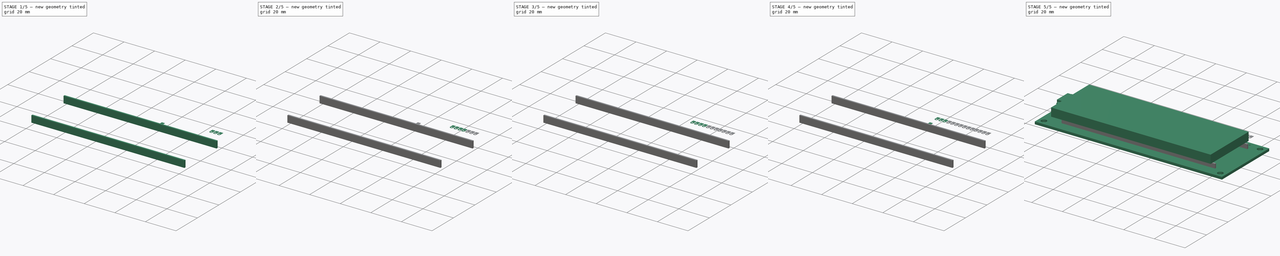
[diagram: build sequence overview — one tinted view per stage of 5, left to right]
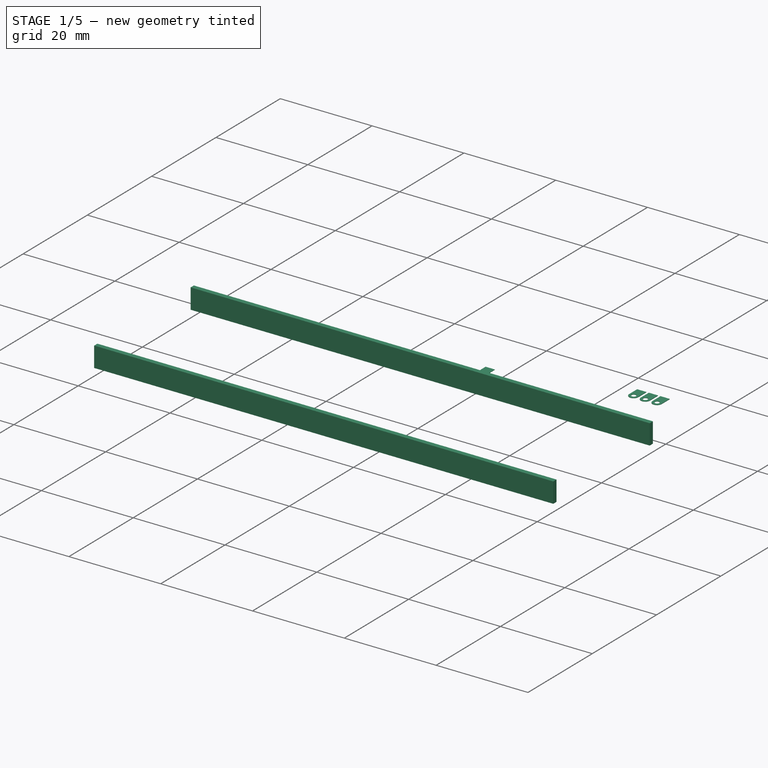
[diagram: stage 1 of 5 — iso view after this stage's code; geometry added in this stage tinted green]
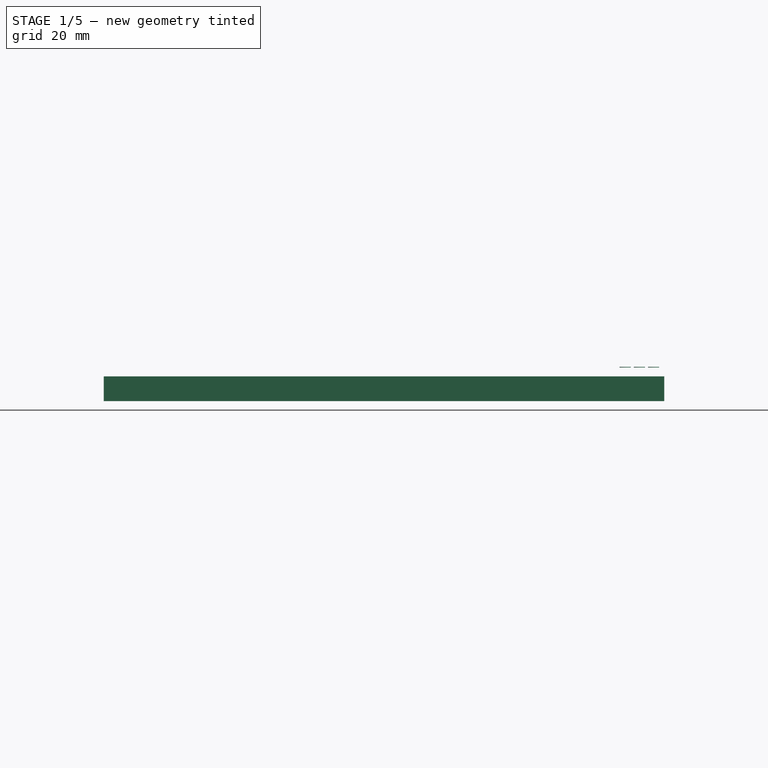
[diagram: stage 1 of 5 — front view after this stage's code; geometry added in this stage tinted green]
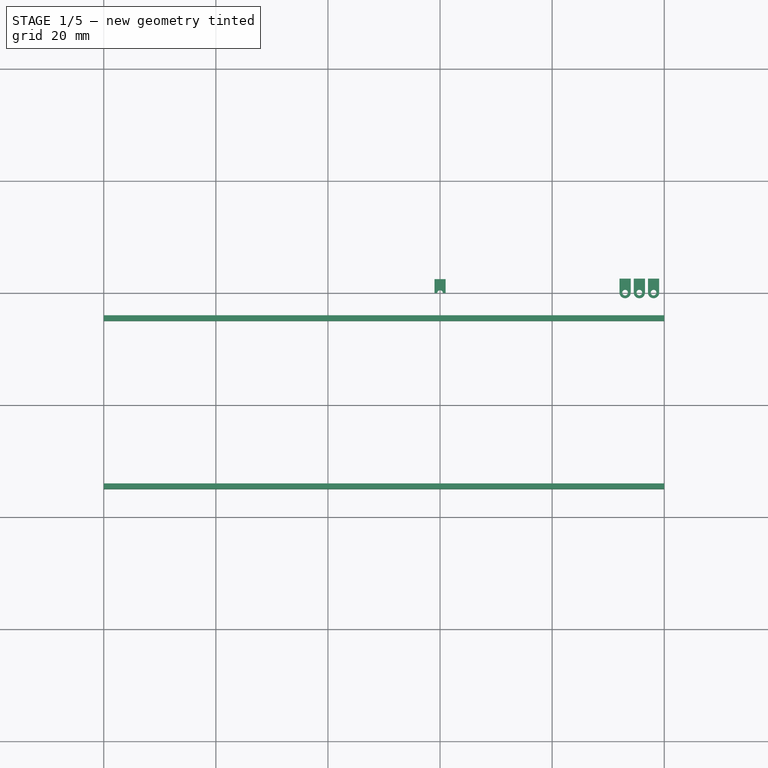
[diagram: stage 1 of 5 — top view after this stage's code; geometry added in this stage tinted green]
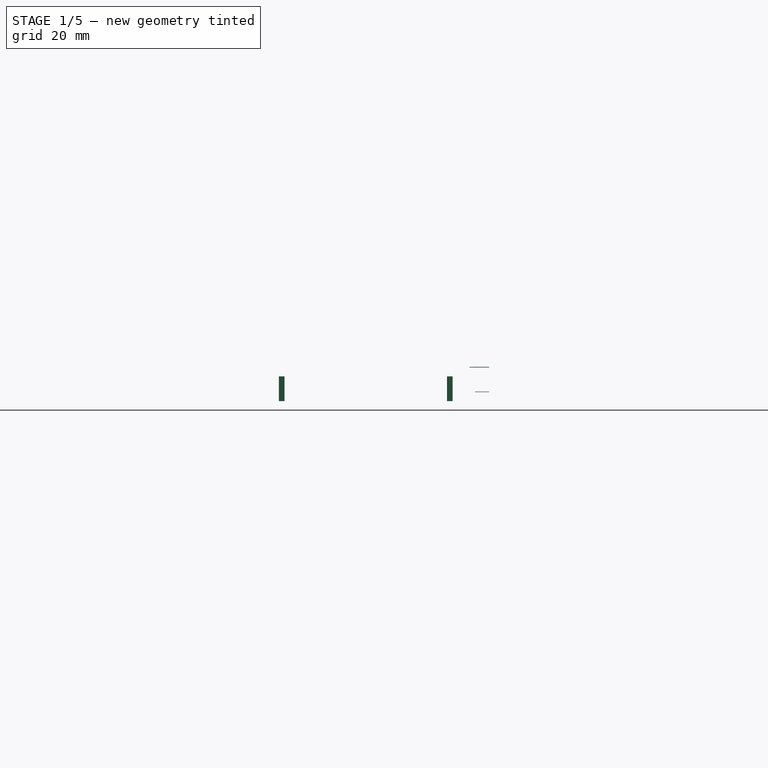
[diagram: stage 1 of 5 — right view after this stage's code; geometry added in this stage tinted green]
FCSTD DOCUMENT  (FreeCAD 0.17R11223 (Git))
Label: HY1602E_5
License: All rights reserved
LicenseURL: http://en.wikipedia.org/wiki/All_rights_reserved
objects: Part::Cylinder×48, Part::Cut×33, Part::Box×24, Part::MultiFuse×17, Part::Fillet×8, Sketcher::SketchObject×1, PartDesign::Pad×1, PartDesign::Body×1, App::DocumentObjectGroup×1
note: 134 computed .brp shape members not serialized (recipe doc carries the construction recipe); baked Part::Feature solids carry a one-line shape summary decoded from their .brp

FEATURE [Part::Cylinder] Cylinder038
  Angle = 360
  AttacherType = Attacher::AttachEngine3D
  Height = 0.1
  Placement = pos=(0,0,1.6) rot=(0,0,1;0rad)
  Radius = 0.5
FEATURE [Part::Box] Box019  label="Kub012"
  AttacherType = Attacher::AttachEngine3D
  Height = 0.1
  Length = 2
  Placement = pos=(-1,0,1.6) rot=(0,0,1;0rad)
  Width = 2.5
FEATURE [Part::Cut] Cut026
  Base = -> Box019
  Tool = -> Cylinder038
FEATURE [Part::Cylinder] Cylinder039
  Angle = 360
  AttacherType = Attacher::AttachEngine3D
  Height = 0.1
  Placement = pos=(0,0,1.6) rot=(0,0,1;0rad)
  Radius = 1
FEATURE [Part::Cylinder] Cylinder040
  Angle = 360
  AttacherType = Attacher::AttachEngine3D
  Height = 0.1
  Placement = pos=(0,0,1.6) rot=(0,0,1;0rad)
  Radius = 0.5
FEATURE [Part::Cut] Cut027
  Base = -> Cylinder039
  Tool = -> Cylinder040
FEATURE [Part::Cylinder] Cylinder041
  Angle = 360
  AttacherType = Attacher::AttachEngine3D
  Height = 0.1
  Placement = pos=(0,0,1.6) rot=(0,0,1;0rad)
  Radius = 0.5
FEATURE [Part::Box] Box020  label="Kub013"
  AttacherType = Attacher::AttachEngine3D
  Height = 0.1
  Length = 2
  Placement = pos=(-1,0,1.6) rot=(0,0,1;0rad)
  Width = 2.5
FEATURE [Part::Cut] Cut028
  Base = -> Box020
  Tool = -> Cylinder041
FEATURE [Part::MultiFuse] Fusion014  label="Pad 014"
  Placement = pos=(33.02,0,4.4) rot=(0,0,1;0rad)
  Shapes = -> [Cut027,Cut028]
FEATURE [Part::Cylinder] Cylinder042
  Angle = 360
  AttacherType = Attacher::AttachEngine3D
  Height = 0.1
  Placement = pos=(0,0,1.6) rot=(0,0,1;0rad)
  Radius = 1
FEATURE [Part::Cylinder] Cylinder043
  Angle = 360
  AttacherType = Attacher::AttachEngine3D
  Height = 0.1
  Placement = pos=(0,0,1.6) rot=(0,0,1;0rad)
  Radius = 0.5
FEATURE [Part::Cut] Cut029
  Base = -> Cylinder042
  Tool = -> Cylinder043
FEATURE [Part::Cylinder] Cylinder044
  Angle = 360
  AttacherType = Attacher::AttachEngine3D
  Height = 0.1
  Placement = pos=(0,0,1.6) rot=(0,0,1;0rad)
  Radius = 0.5
FEATURE [Part::Box] Box021  label="Kub014"
  AttacherType = Attacher::AttachEngine3D
  Height = 0.1
  Length = 2
  Placement = pos=(-1,0,1.6) rot=(0,0,1;0rad)
  Width = 2.5
FEATURE [Part::Cut] Cut030
  Base = -> Box021
  Tool = -> Cylinder044
FEATURE [Part::MultiFuse] Fusion015  label="Pad 015"
  Placement = pos=(35.56,0,4.4) rot=(0,0,1;0rad)
  Shapes = -> [Cut029,Cut030]
FEATURE [Part::Cylinder] Cylinder045
  Angle = 360
  AttacherType = Attacher::AttachEngine3D
  Height = 0.1
  Placement = pos=(0,0,1.6) rot=(0,0,1;0rad)
  Radius = 1
FEATURE [Part::Cylinder] Cylinder046
  Angle = 360
  AttacherType = Attacher::AttachEngine3D
  Height = 0.1
  Placement = pos=(0,0,1.6) rot=(0,0,1;0rad)
  Radius = 0.5
FEATURE [Part::Cut] Cut031
  Base = -> Cylinder045
  Tool = -> Cylinder046
FEATURE [Part::Cylinder] Cylinder047
  Angle = 360
  AttacherType = Attacher::AttachEngine3D
  Height = 0.1
  Placement = pos=(0,0,1.6) rot=(0,0,1;0rad)
  Radius = 0.5
FEATURE [Part::Box] Box022  label="Kub015"
  AttacherType = Attacher::AttachEngine3D
  Height = 0.1
  Length = 2
  Placement = pos=(-1,0,1.6) rot=(0,0,1;0rad)
  Width = 2.5
FEATURE [Part::Cut] Cut032
  Base = -> Box022
  Tool = -> Cylinder047
FEATURE [Part::MultiFuse] Fusion016  label="Pad 016"
  Placement = pos=(38.1,0,4.4) rot=(0,0,1;0rad)
  Shapes = -> [Cut031,Cut032]
FEATURE [App::DocumentObjectGroup] Grupp  label="Pads"
  Group = -> [Fusion001,Fusion002,Fusion003,Fusion004,Fusion005,Fusion006,Fusion007,Fusion008,Fusion009,Fusion010,Fusion011,Fusion012,Fusion013,Fusion014,Fusion015,Fusion016]
FEATURE [Part::Box] Box023  label="Glider 001"
  AttacherType = Attacher::AttachEngine3D
  Height = 4.4
  Length = 100
  Placement = pos=(-60,-5,0) rot=(0,0,1;0rad)
  Width = 1
FEATURE [Part::Box] Box024  label="Glider 002"
  AttacherType = Attacher::AttachEngine3D
  Height = 4.4
  Length = 100
  Placement = pos=(-60,-35,0) rot=(0,0,1;0rad)
  Width = 1
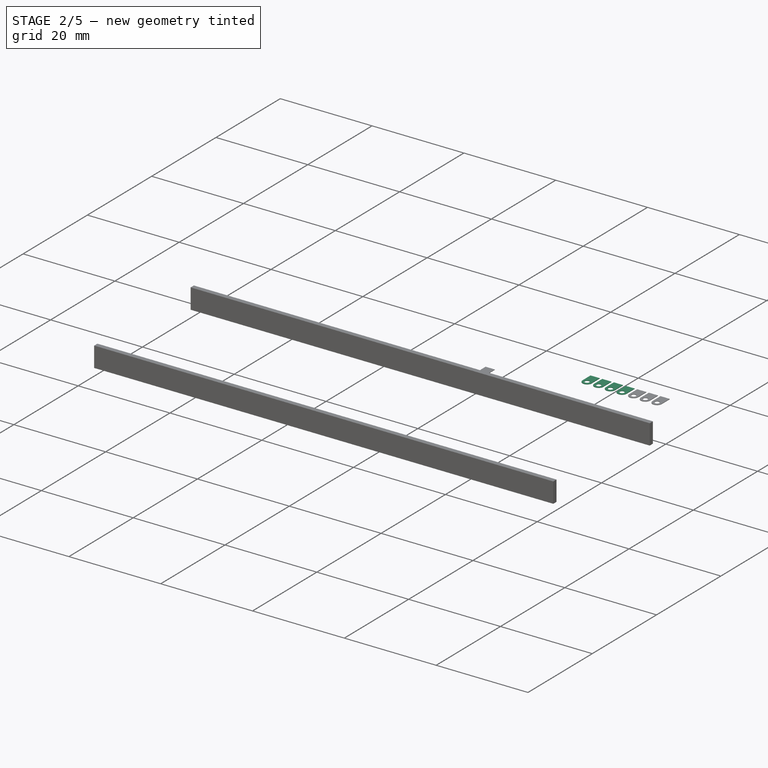
[diagram: stage 2 of 5 — iso view after this stage's code; geometry added in this stage tinted green]
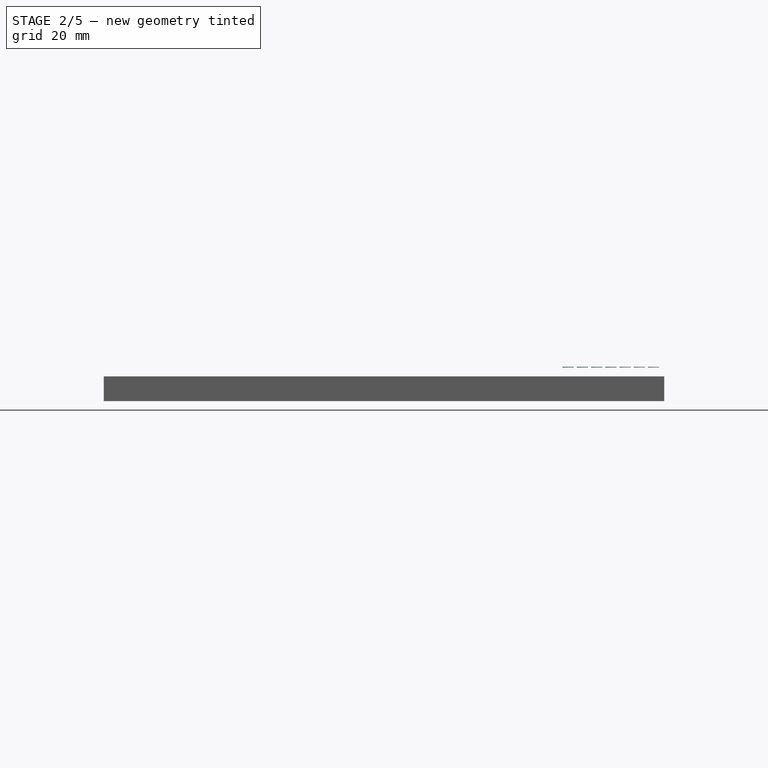
[diagram: stage 2 of 5 — front view after this stage's code; geometry added in this stage tinted green]
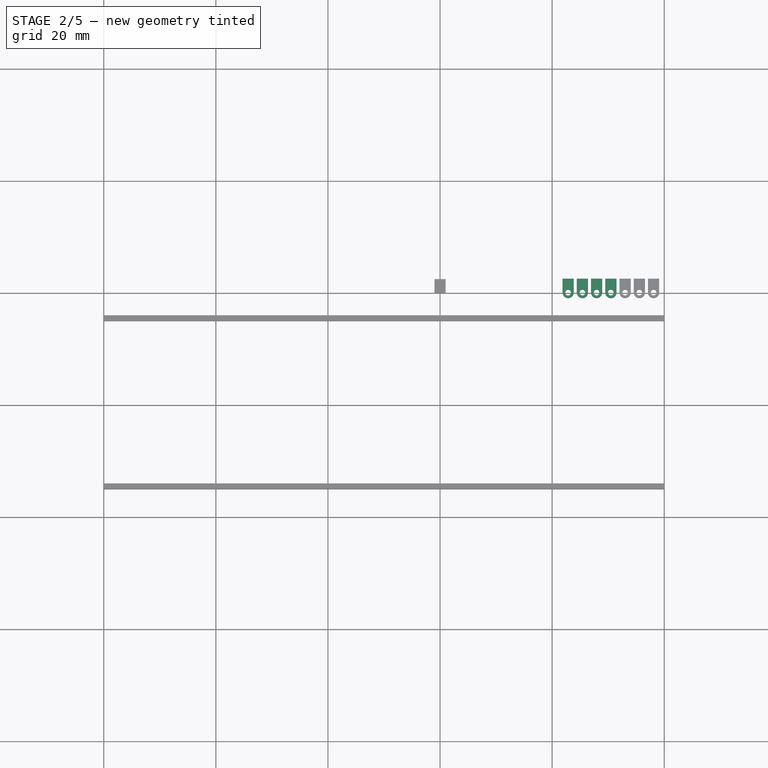
[diagram: stage 2 of 5 — top view after this stage's code; geometry added in this stage tinted green]
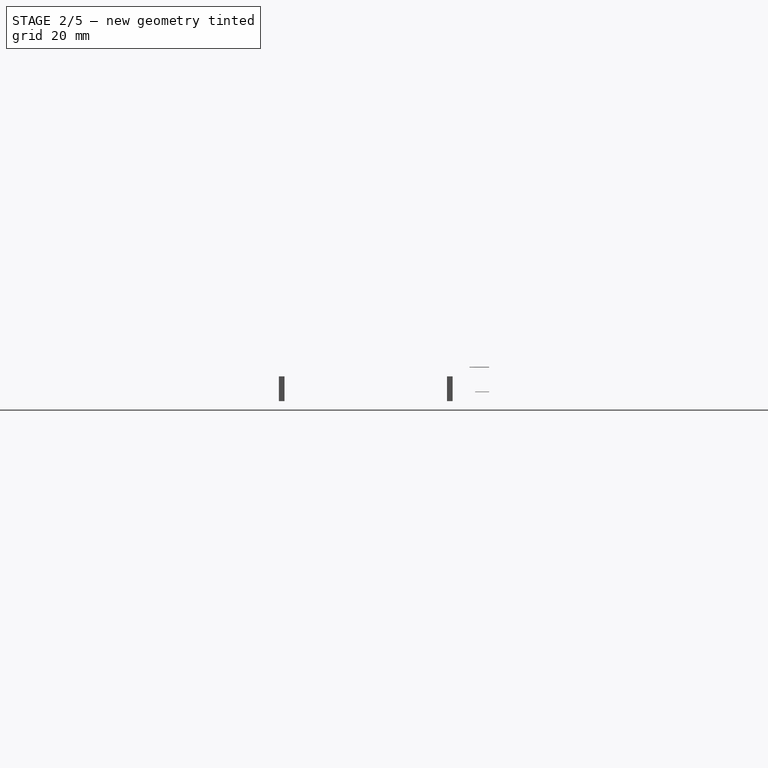
[diagram: stage 2 of 5 — right view after this stage's code; geometry added in this stage tinted green]
FEATURE [Part::Box] Box015  label="Kub008"
  AttacherType = Attacher::AttachEngine3D
  Height = 0.1
  Length = 2
  Placement = pos=(-1,0,1.6) rot=(0,0,1;0rad)
  Width = 2.5
FEATURE [Part::Cylinder] Cylinder027
  Angle = 360
  AttacherType = Attacher::AttachEngine3D
  Height = 0.1
  Placement = pos=(0,0,1.6) rot=(0,0,1;0rad)
  Radius = 1
FEATURE [Part::Cylinder] Cylinder028
  Angle = 360
  AttacherType = Attacher::AttachEngine3D
  Height = 0.1
  Placement = pos=(0,0,1.6) rot=(0,0,1;0rad)
  Radius = 0.5
FEATURE [Part::Cut] Cut019
  Base = -> Cylinder027
  Tool = -> Cylinder028
FEATURE [Part::Cylinder] Cylinder029
  Angle = 360
  AttacherType = Attacher::AttachEngine3D
  Height = 0.1
  Placement = pos=(0,0,1.6) rot=(0,0,1;0rad)
  Radius = 0.5
FEATURE [Part::Box] Box016  label="Kub009"
  AttacherType = Attacher::AttachEngine3D
  Height = 0.1
  Length = 2
  Placement = pos=(-1,0,1.6) rot=(0,0,1;0rad)
  Width = 2.5
FEATURE [Part::Cut] Cut020
  Base = -> Box016
  Tool = -> Cylinder029
FEATURE [Part::MultiFuse] Fusion010  label="Pad 010"
  Placement = pos=(22.86,0,4.4) rot=(0,0,1;0rad)
  Shapes = -> [Cut019,Cut020]
FEATURE [Part::Cylinder] Cylinder030
  Angle = 360
  AttacherType = Attacher::AttachEngine3D
  Height = 0.1
  Placement = pos=(0,0,1.6) rot=(0,0,1;0rad)
  Radius = 1
FEATURE [Part::Cylinder] Cylinder031
  Angle = 360
  AttacherType = Attacher::AttachEngine3D
  Height = 0.1
  Placement = pos=(0,0,1.6) rot=(0,0,1;0rad)
  Radius = 0.5
FEATURE [Part::Cut] Cut021
  Base = -> Cylinder030
  Tool = -> Cylinder031
FEATURE [Part::Cylinder] Cylinder032
  Angle = 360
  AttacherType = Attacher::AttachEngine3D
  Height = 0.1
  Placement = pos=(0,0,1.6) rot=(0,0,1;0rad)
  Radius = 0.5
FEATURE [Part::Box] Box017  label="Kub010"
  AttacherType = Attacher::AttachEngine3D
  Height = 0.1
  Length = 2
  Placement = pos=(-1,0,1.6) rot=(0,0,1;0rad)
  Width = 2.5
FEATURE [Part::Cut] Cut022
  Base = -> Box017
  Tool = -> Cylinder032
FEATURE [Part::MultiFuse] Fusion011  label="Pad 011"
  Placement = pos=(25.4,0,4.4) rot=(0,0,1;0rad)
  Shapes = -> [Cut021,Cut022]
FEATURE [Part::Cylinder] Cylinder033
  Angle = 360
  AttacherType = Attacher::AttachEngine3D
  Height = 0.1
  Placement = pos=(0,0,1.6) rot=(0,0,1;0rad)
  Radius = 1
FEATURE [Part::Cylinder] Cylinder034
  Angle = 360
  AttacherType = Attacher::AttachEngine3D
  Height = 0.1
  Placement = pos=(0,0,1.6) rot=(0,0,1;0rad)
  Radius = 0.5
FEATURE [Part::Cut] Cut023
  Base = -> Cylinder033
  Tool = -> Cylinder034
FEATURE [Part::Cylinder] Cylinder035
  Angle = 360
  AttacherType = Attacher::AttachEngine3D
  Height = 0.1
  Placement = pos=(0,0,1.6) rot=(0,0,1;0rad)
  Radius = 0.5
FEATURE [Part::Box] Box018  label="Kub011"
  AttacherType = Attacher::AttachEngine3D
  Height = 0.1
  Length = 2
  Placement = pos=(-1,0,1.6) rot=(0,0,1;0rad)
  Width = 2.5
FEATURE [Part::Cut] Cut024
  Base = -> Box018
  Tool = -> Cylinder035
FEATURE [Part::MultiFuse] Fusion012  label="Pad 012"
  Placement = pos=(27.94,0,4.4) rot=(0,0,1;0rad)
  Shapes = -> [Cut023,Cut024]
FEATURE [Part::Cylinder] Cylinder036
  Angle = 360
  AttacherType = Attacher::AttachEngine3D
  Height = 0.1
  Placement = pos=(0,0,1.6) rot=(0,0,1;0rad)
  Radius = 1
FEATURE [Part::Cylinder] Cylinder037
  Angle = 360
  AttacherType = Attacher::AttachEngine3D
  Height = 0.1
  Placement = pos=(0,0,1.6) rot=(0,0,1;0rad)
  Radius = 0.5
FEATURE [Part::Cut] Cut025
  Base = -> Cylinder036
  Tool = -> Cylinder037
FEATURE [Part::MultiFuse] Fusion013  label="Pad 013"
  Placement = pos=(30.48,0,4.4) rot=(0,0,1;0rad)
  Shapes = -> [Cut025,Cut026]
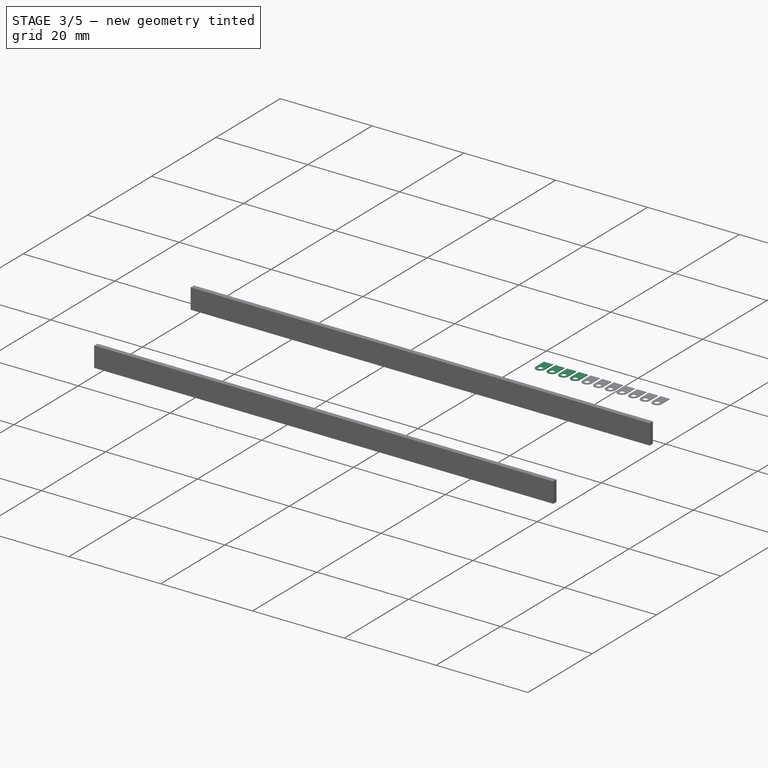
[diagram: stage 3 of 5 — iso view after this stage's code; geometry added in this stage tinted green]
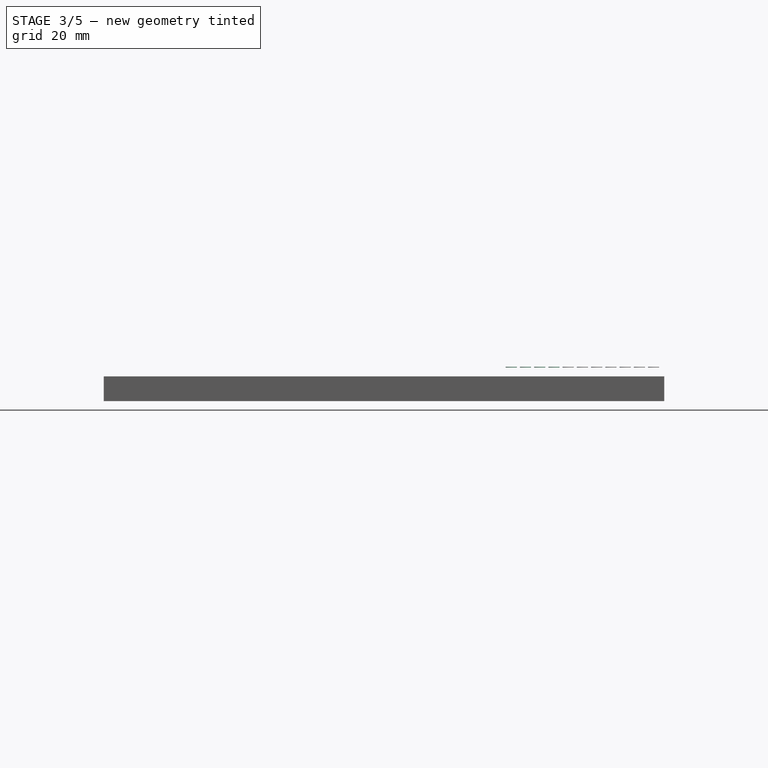
[diagram: stage 3 of 5 — front view after this stage's code; geometry added in this stage tinted green]
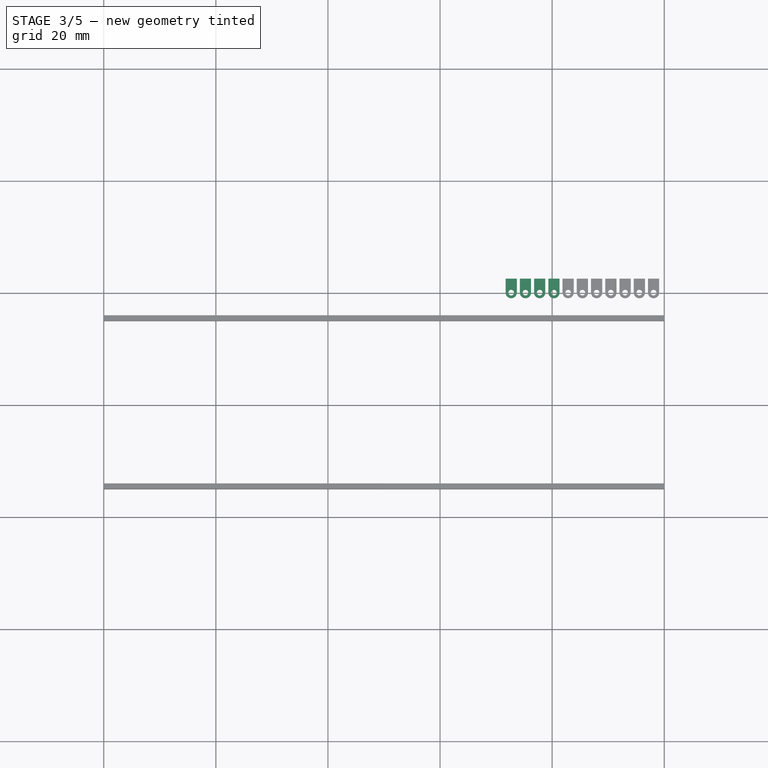
[diagram: stage 3 of 5 — top view after this stage's code; geometry added in this stage tinted green]
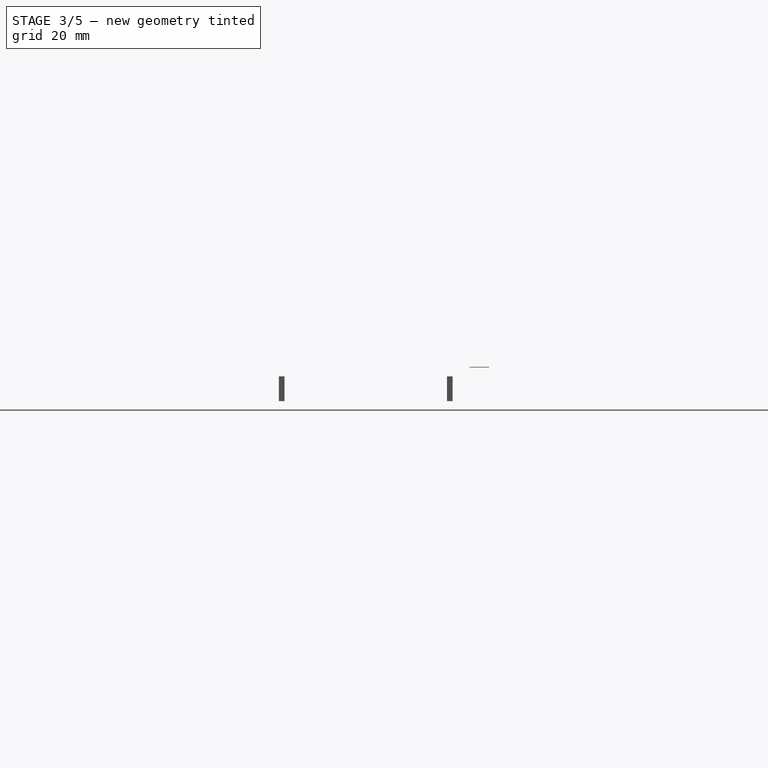
[diagram: stage 3 of 5 — right view after this stage's code; geometry added in this stage tinted green]
FEATURE [Part::Cylinder] Cylinder015
  Angle = 360
  AttacherType = Attacher::AttachEngine3D
  Height = 0.1
  Placement = pos=(0,0,1.6) rot=(0,0,1;0rad)
  Radius = 1
FEATURE [Part::Cylinder] Cylinder016
  Angle = 360
  AttacherType = Attacher::AttachEngine3D
  Height = 0.1
  Placement = pos=(0,0,1.6) rot=(0,0,1;0rad)
  Radius = 0.5
FEATURE [Part::Cut] Cut011
  Base = -> Cylinder015
  Tool = -> Cylinder016
FEATURE [Part::Cylinder] Cylinder017
  Angle = 360
  AttacherType = Attacher::AttachEngine3D
  Height = 0.1
  Placement = pos=(0,0,1.6) rot=(0,0,1;0rad)
  Radius = 0.5
FEATURE [Part::Box] Box012  label="Kub005"
  AttacherType = Attacher::AttachEngine3D
  Height = 0.1
  Length = 2
  Placement = pos=(-1,0,1.6) rot=(0,0,1;0rad)
  Width = 2.5
FEATURE [Part::Cut] Cut012
  Base = -> Box012
  Tool = -> Cylinder017
FEATURE [Part::MultiFuse] Fusion006  label="Pad 006"
  Placement = pos=(12.7,0,4.4) rot=(0,0,1;0rad)
  Shapes = -> [Cut011,Cut012]
FEATURE [Part::Cylinder] Cylinder018
  Angle = 360
  AttacherType = Attacher::AttachEngine3D
  Height = 0.1
  Placement = pos=(0,0,1.6) rot=(0,0,1;0rad)
  Radius = 1
FEATURE [Part::Cylinder] Cylinder019
  Angle = 360
  AttacherType = Attacher::AttachEngine3D
  Height = 0.1
  Placement = pos=(0,0,1.6) rot=(0,0,1;0rad)
  Radius = 0.5
FEATURE [Part::Cut] Cut013
  Base = -> Cylinder018
  Tool = -> Cylinder019
FEATURE [Part::Cylinder] Cylinder020
  Angle = 360
  AttacherType = Attacher::AttachEngine3D
  Height = 0.1
  Placement = pos=(0,0,1.6) rot=(0,0,1;0rad)
  Radius = 0.5
FEATURE [Part::Box] Box013  label="Kub006"
  AttacherType = Attacher::AttachEngine3D
  Height = 0.1
  Length = 2
  Placement = pos=(-1,0,1.6) rot=(0,0,1;0rad)
  Width = 2.5
FEATURE [Part::Cut] Cut014
  Base = -> Box013
  Tool = -> Cylinder020
FEATURE [Part::MultiFuse] Fusion007  label="Pad 007"
  Placement = pos=(15.24,0,4.4) rot=(0,0,1;0rad)
  Shapes = -> [Cut013,Cut014]
FEATURE [Part::Cylinder] Cylinder021
  Angle = 360
  AttacherType = Attacher::AttachEngine3D
  Height = 0.1
  Placement = pos=(0,0,1.6) rot=(0,0,1;0rad)
  Radius = 1
FEATURE [Part::Cylinder] Cylinder022
  Angle = 360
  AttacherType = Attacher::AttachEngine3D
  Height = 0.1
  Placement = pos=(0,0,1.6) rot=(0,0,1;0rad)
  Radius = 0.5
FEATURE [Part::Cut] Cut015
  Base = -> Cylinder021
  Tool = -> Cylinder022
FEATURE [Part::Cylinder] Cylinder023
  Angle = 360
  AttacherType = Attacher::AttachEngine3D
  Height = 0.1
  Placement = pos=(0,0,1.6) rot=(0,0,1;0rad)
  Radius = 0.5
FEATURE [Part::Box] Box014  label="Kub007"
  AttacherType = Attacher::AttachEngine3D
  Height = 0.1
  Length = 2
  Placement = pos=(-1,0,1.6) rot=(0,0,1;0rad)
  Width = 2.5
FEATURE [Part::Cut] Cut016
  Base = -> Box014
  Tool = -> Cylinder023
FEATURE [Part::MultiFuse] Fusion008  label="Pad 008"
  Placement = pos=(17.78,0,4.4) rot=(0,0,1;0rad)
  Shapes = -> [Cut015,Cut016]
FEATURE [Part::Cylinder] Cylinder024
  Angle = 360
  AttacherType = Attacher::AttachEngine3D
  Height = 0.1
  Placement = pos=(0,0,1.6) rot=(0,0,1;0rad)
  Radius = 1
FEATURE [Part::Cylinder] Cylinder025
  Angle = 360
  AttacherType = Attacher::AttachEngine3D
  Height = 0.1
  Placement = pos=(0,0,1.6) rot=(0,0,1;0rad)
  Radius = 0.5
FEATURE [Part::Cut] Cut017
  Base = -> Cylinder024
  Tool = -> Cylinder025
FEATURE [Part::Cylinder] Cylinder026
  Angle = 360
  AttacherType = Attacher::AttachEngine3D
  Height = 0.1
  Placement = pos=(0,0,1.6) rot=(0,0,1;0rad)
  Radius = 0.5
FEATURE [Part::Cut] Cut018
  Base = -> Box015
  Tool = -> Cylinder026
FEATURE [Part::MultiFuse] Fusion009  label="Pad 009"
  Placement = pos=(20.32,0,4.4) rot=(0,0,1;0rad)
  Shapes = -> [Cut017,Cut018]
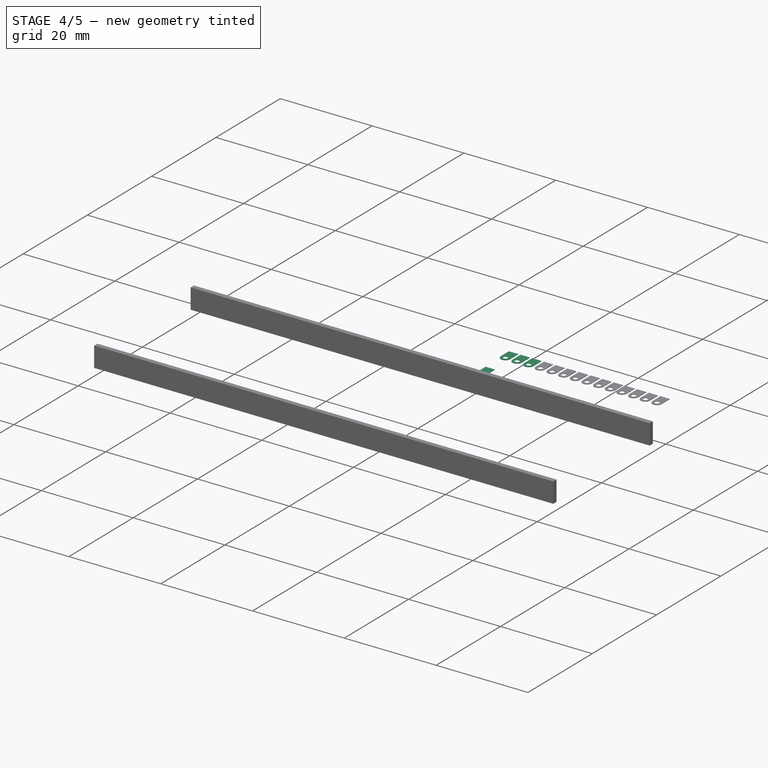
[diagram: stage 4 of 5 — iso view after this stage's code; geometry added in this stage tinted green]
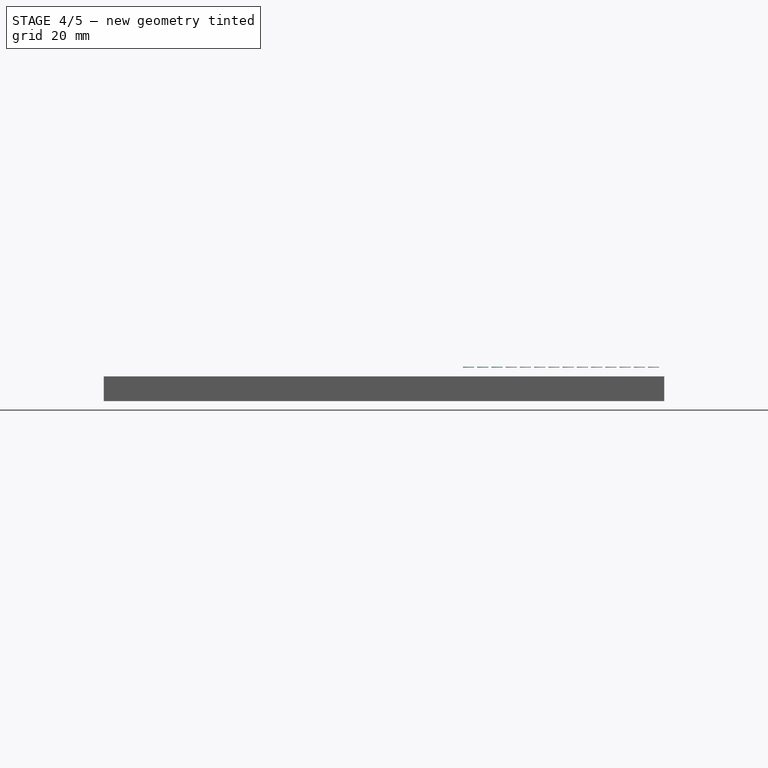
[diagram: stage 4 of 5 — front view after this stage's code; geometry added in this stage tinted green]
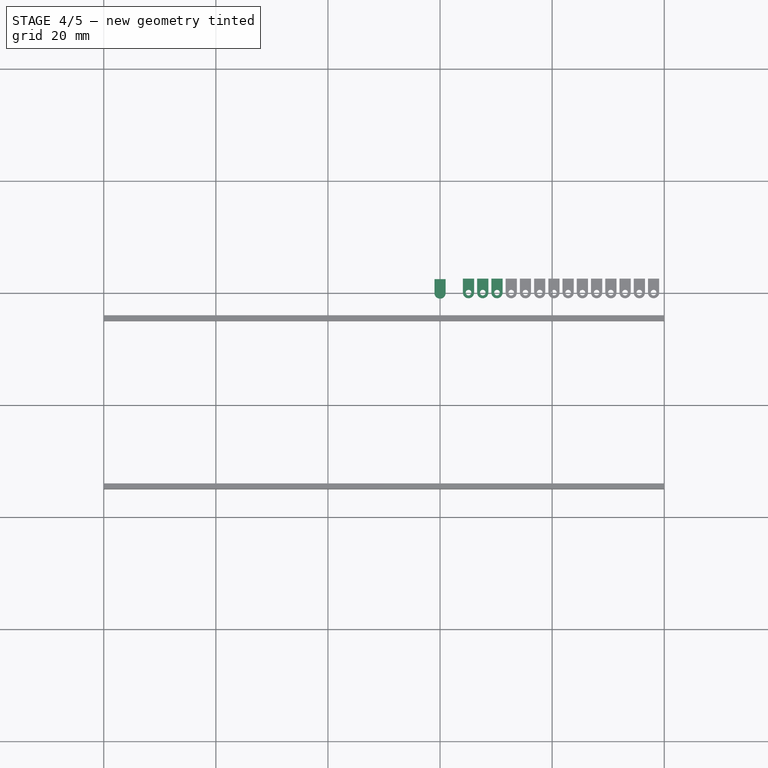
[diagram: stage 4 of 5 — top view after this stage's code; geometry added in this stage tinted green]
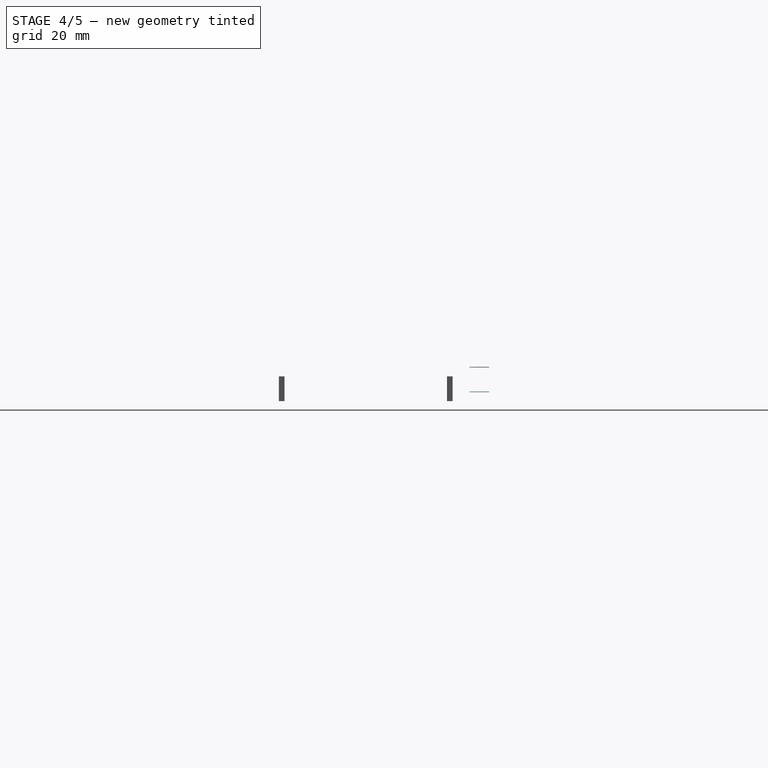
[diagram: stage 4 of 5 — right view after this stage's code; geometry added in this stage tinted green]
FEATURE [Part::Cylinder] Cylinder003
  Angle = 360
  AttacherType = Attacher::AttachEngine3D
  Height = 0.1
  Placement = pos=(0,0,1.6) rot=(0,0,1;0rad)
  Radius = 1
FEATURE [Part::Cylinder] Cylinder004
  Angle = 360
  AttacherType = Attacher::AttachEngine3D
  Height = 0.1
  Placement = pos=(0,0,1.6) rot=(0,0,1;0rad)
  Radius = 0.5
FEATURE [Part::Cylinder] Cylinder005
  Angle = 360
  AttacherType = Attacher::AttachEngine3D
  Height = 0.1
  Placement = pos=(0,0,1.6) rot=(0,0,1;0rad)
  Radius = 0.5
FEATURE [Part::Box] Box008  label="Kub001"
  AttacherType = Attacher::AttachEngine3D
  Height = 0.1
  Length = 2
  Placement = pos=(-1,0,1.6) rot=(0,0,1;0rad)
  Width = 2.5
FEATURE [Part::Cut] Cut004
  Base = -> Box008
  Tool = -> Cylinder005
FEATURE [Part::Cylinder] Cylinder006
  Angle = 360
  AttacherType = Attacher::AttachEngine3D
  Height = 0.1
  Placement = pos=(0,0,1.6) rot=(0,0,1;0rad)
  Radius = 1
FEATURE [Part::Cylinder] Cylinder007
  Angle = 360
  AttacherType = Attacher::AttachEngine3D
  Height = 0.1
  Placement = pos=(0,0,1.6) rot=(0,0,1;0rad)
  Radius = 0.5
FEATURE [Part::Cut] Cut005
  Base = -> Cylinder006
  Tool = -> Cylinder007
FEATURE [Part::Cylinder] Cylinder008
  Angle = 360
  AttacherType = Attacher::AttachEngine3D
  Height = 0.1
  Placement = pos=(0,0,1.6) rot=(0,0,1;0rad)
  Radius = 0.5
FEATURE [Part::Box] Box009  label="Kub002"
  AttacherType = Attacher::AttachEngine3D
  Height = 0.1
  Length = 2
  Placement = pos=(-1,0,1.6) rot=(0,0,1;0rad)
  Width = 2.5
FEATURE [Part::Cut] Cut006
  Base = -> Box009
  Tool = -> Cylinder008
FEATURE [Part::MultiFuse] Fusion003  label="Pad 003"
  Placement = pos=(5.08,0,4.4) rot=(0,0,1;0rad)
  Shapes = -> [Cut005,Cut006]
FEATURE [Part::Cylinder] Cylinder009
  Angle = 360
  AttacherType = Attacher::AttachEngine3D
  Height = 0.1
  Placement = pos=(0,0,1.6) rot=(0,0,1;0rad)
  Radius = 1
FEATURE [Part::Cylinder] Cylinder010
  Angle = 360
  AttacherType = Attacher::AttachEngine3D
  Height = 0.1
  Placement = pos=(0,0,1.6) rot=(0,0,1;0rad)
  Radius = 0.5
FEATURE [Part::Cut] Cut007
  Base = -> Cylinder009
  Tool = -> Cylinder010
FEATURE [Part::Cylinder] Cylinder011
  Angle = 360
  AttacherType = Attacher::AttachEngine3D
  Height = 0.1
  Placement = pos=(0,0,1.6) rot=(0,0,1;0rad)
  Radius = 0.5
FEATURE [Part::Box] Box010  label="Kub003"
  AttacherType = Attacher::AttachEngine3D
  Height = 0.1
  Length = 2
  Placement = pos=(-1,0,1.6) rot=(0,0,1;0rad)
  Width = 2.5
FEATURE [Part::Cut] Cut008
  Base = -> Box010
  Tool = -> Cylinder011
FEATURE [Part::MultiFuse] Fusion004  label="Pad 004"
  Placement = pos=(7.62,0,4.4) rot=(0,0,1;0rad)
  Shapes = -> [Cut007,Cut008]
FEATURE [Part::Cylinder] Cylinder012
  Angle = 360
  AttacherType = Attacher::AttachEngine3D
  Height = 0.1
  Placement = pos=(0,0,1.6) rot=(0,0,1;0rad)
  Radius = 1
FEATURE [Part::Cylinder] Cylinder013
  Angle = 360
  AttacherType = Attacher::AttachEngine3D
  Height = 0.1
  Placement = pos=(0,0,1.6) rot=(0,0,1;0rad)
  Radius = 0.5
FEATURE [Part::Cut] Cut009
  Base = -> Cylinder012
  Tool = -> Cylinder013
FEATURE [Part::Cylinder] Cylinder014
  Angle = 360
  AttacherType = Attacher::AttachEngine3D
  Height = 0.1
  Placement = pos=(0,0,1.6) rot=(0,0,1;0rad)
  Radius = 0.5
FEATURE [Part::Box] Box011  label="Kub004"
  AttacherType = Attacher::AttachEngine3D
  Height = 0.1
  Length = 2
  Placement = pos=(-1,0,1.6) rot=(0,0,1;0rad)
  Width = 2.5
FEATURE [Part::Cut] Cut010
  Base = -> Box011
  Tool = -> Cylinder014
FEATURE [Part::MultiFuse] Fusion005  label="Pad 005"
  Placement = pos=(10.16,0,4.4) rot=(0,0,1;0rad)
  Shapes = -> [Cut009,Cut010]
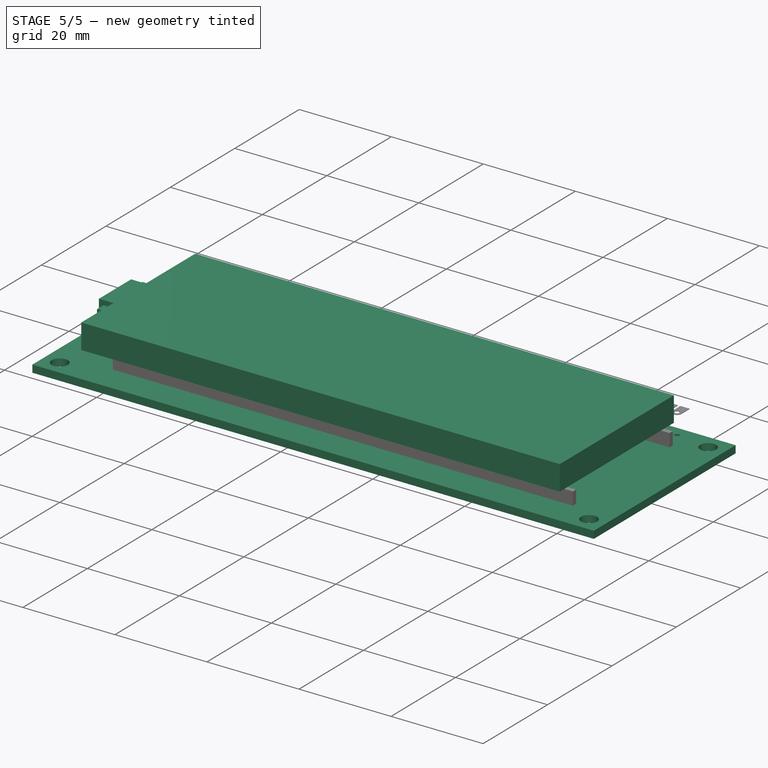
[diagram: stage 5 of 5 — iso view after this stage's code; geometry added in this stage tinted green]
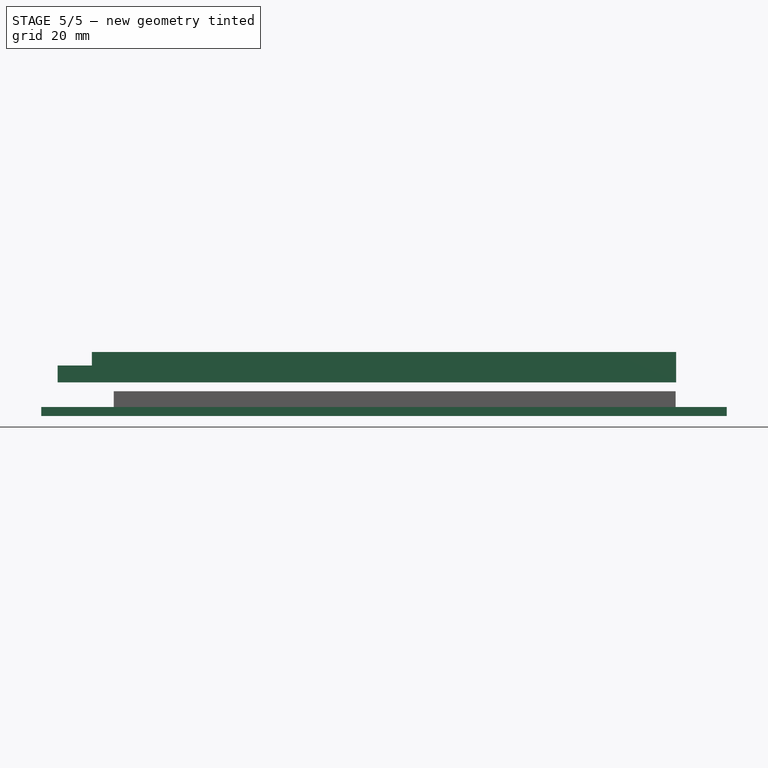
[diagram: stage 5 of 5 — front view after this stage's code; geometry added in this stage tinted green]
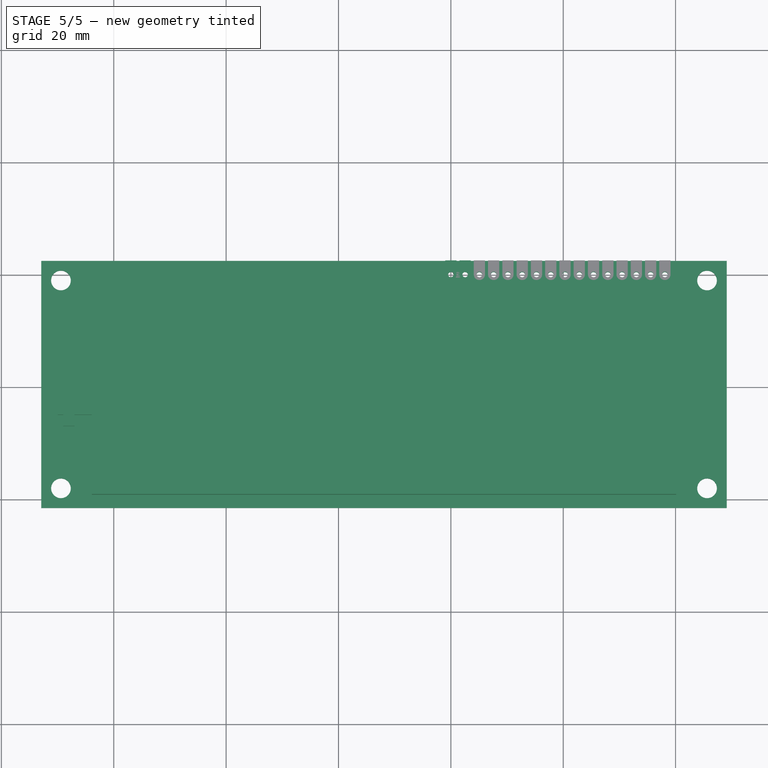
[diagram: stage 5 of 5 — top view after this stage's code; geometry added in this stage tinted green]
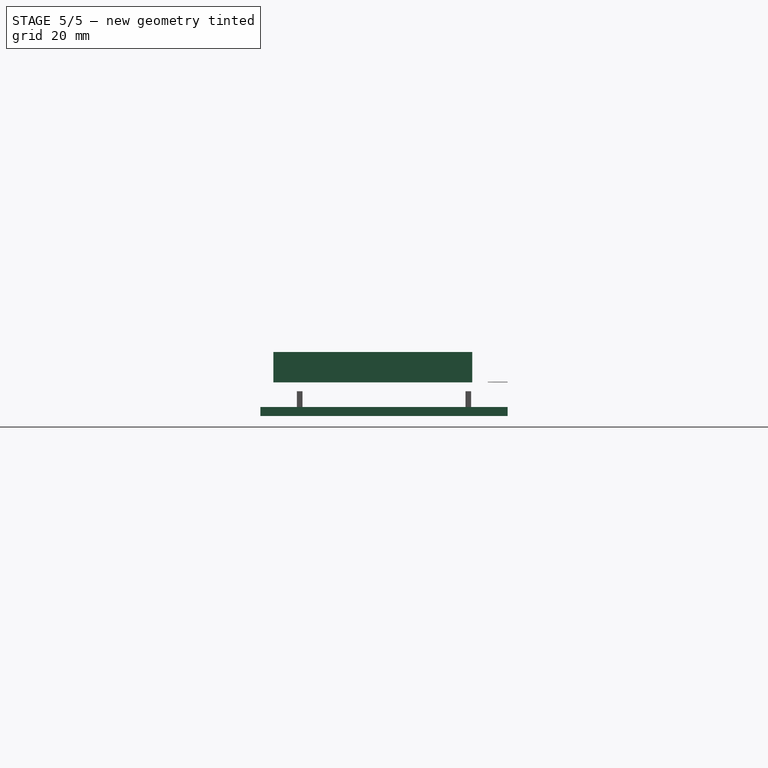
[diagram: stage 5 of 5 — right view after this stage's code; geometry added in this stage tinted green]
FEATURE [Sketcher::SketchObject] Sketch
  MapMode = 5
  Support = -> [XY_Plane]
  sketch-geometry (24):
    g0: LineSegment StartX=-72.9 StartY=2.5 StartZ=0 EndX=49.1 EndY=2.5 EndZ=0
    g1: LineSegment StartX=49.1 StartY=2.5 StartZ=0 EndX=49.1 EndY=-41.5 EndZ=0
    g2: LineSegment StartX=49.1 StartY=-41.5 StartZ=0 EndX=-72.9 EndY=-41.5 EndZ=0
    g3: LineSegment StartX=-72.9 StartY=-41.5 StartZ=0 EndX=-72.9 EndY=2.5 EndZ=0
    g4: Circle CenterX=-69.4 CenterY=-1 CenterZ=0 NormalX=0 NormalY=0 NormalZ=1 Radius=1.75
    g5: Circle CenterX=-69.4 CenterY=-38 CenterZ=0 NormalX=0 NormalY=0 NormalZ=1 Radius=1.75
    g6: Circle CenterX=45.6 CenterY=-38 CenterZ=0 NormalX=0 NormalY=0 NormalZ=1 Radius=1.75
    g7: Circle CenterX=2.54 CenterY=0 CenterZ=0 NormalX=0 NormalY=0 NormalZ=1 Radius=0.5
    g8: Circle CenterX=5.08 CenterY=0 CenterZ=0 NormalX=0 NormalY=0 NormalZ=1 Radius=0.5
    g9: Circle CenterX=7.62 CenterY=0 CenterZ=0 NormalX=0 NormalY=0 NormalZ=1 Radius=0.5
    g10: Circle CenterX=10.16 CenterY=0 CenterZ=0 NormalX=0 NormalY=0 NormalZ=1 Radius=0.5
    g11: Circle CenterX=12.7 CenterY=0 CenterZ=0 NormalX=0 NormalY=0 NormalZ=1 Radius=0.5
    g12: Circle CenterX=15.24 CenterY=0 CenterZ=0 NormalX=0 NormalY=0 NormalZ=1 Radius=0.5
    g13: Circle CenterX=17.78 CenterY=0 CenterZ=0 NormalX=0 NormalY=0 NormalZ=1 Radius=0.5
    g14: Circle CenterX=0 CenterY=0 CenterZ=0 NormalX=0 NormalY=0 NormalZ=1 Radius=0.5
    g15: Circle CenterX=45.6 CenterY=-1 CenterZ=0 NormalX=0 NormalY=0 NormalZ=1 Radius=1.75
    g16: Circle CenterX=20.32 CenterY=0 CenterZ=0 NormalX=0 NormalY=0 NormalZ=1 Radius=0.5
    g17: Circle CenterX=22.86 CenterY=0 CenterZ=0 NormalX=0 NormalY=0 NormalZ=1 Radius=0.5
    g18: Circle CenterX=25.4 CenterY=0 CenterZ=0 NormalX=0 NormalY=0 NormalZ=1 Radius=0.5
    g19: Circle CenterX=27.94 CenterY=0 CenterZ=0 NormalX=0 NormalY=0 NormalZ=1 Radius=0.5
    g20: Circle CenterX=30.48 CenterY=0 CenterZ=0 NormalX=0 NormalY=0 NormalZ=1 Radius=0.5
    g21: Circle CenterX=33.02 CenterY=0 CenterZ=0 NormalX=0 NormalY=0 NormalZ=1 Radius=0.5
    g22: Circle CenterX=35.56 CenterY=0 CenterZ=0 NormalX=0 NormalY=0 NormalZ=1 Radius=0.5
    g23: Circle CenterX=38.1 CenterY=0 CenterZ=0 NormalX=0 NormalY=0 NormalZ=1 Radius=0.5
  constraints (66):
    c: Coincident(g0,g1)
    c: Coincident(g1,g2)
    c: Coincident(g2,g3)
    c: Coincident(g3,g0)
    c: Horizontal(g0)
    c: Horizontal(g2)
    c: Vertical(g1)
    c: Vertical(g3)
    c: DistanceX(g0,g0) = 122
    c: DistanceY(g1,g0) = 44
    c: DistanceY(g-1,g0) = 2.5
    c: DistanceX(g-1,g0) = 49.1
    c: Radius(g4) = 1.75
    c: Radius(g5) = 1.75
    c: Radius(g6) = 1.75
    c: DistanceY(g4,g0) = 3.5
    c: DistanceY(g2,g5) = 3.5
    c: DistanceX(g2,g5) = 3.5
    c: DistanceX(g0,g4) = 3.5
    c: DistanceX(g6,g1) = 3.5
    c: DistanceY(g1,g6) = 3.5
    c: Radius(g15) = 1.75
    c: DistanceX(g15,g0) = 3.5
    c: DistanceY(g15,g0) = 3.5
    c: DistanceX(g-1,g14) = 0
    c: Radius(g14) = 0.5
    c: DistanceY(g14,g-1) = 0
    c: DistanceX(g7) = 2.54
    c: Radius(g11) = 0.5
    c: Equal(g11,g12)
    c: Equal(g11,g13)
    c: Equal(g11,g10)
    c: Equal(g11,g9)
    c: Equal(g11,g8)
    c: Equal(g11,g7)
    c: DistanceX(g7,g8) = 2.54
    c: DistanceX(g8,g9) = 2.54
    c: DistanceX(g9,g10) = 2.54
    c: DistanceX(g10,g11) = 2.54
    c: DistanceX(g11,g12) = 2.54
    c: DistanceX(g12,g13) = 2.54
    c: Radius(g16) = 0.5
    c: Equal(g16, g17-g23) x7
    c: DistanceX(g13,g16) = 2.54
    c: DistanceX(g16,g17) = 2.54
    c: DistanceX(g17,g18) = 2.54
    c: DistanceX(g18,g19) = 2.54
    c: DistanceX(g19,g20) = 2.54
    c: DistanceX(g20,g21) = 2.54
    c: DistanceX(g21,g22) = 2.54
    c: DistanceX(g22,g23) = 2.54
    c: DistanceY(g7,g-1) = 0
    c: DistanceY(g8,g-1) = 0
    c: DistanceY(g9,g-1) = 0
    c: DistanceY(g10,g-1) = 0
    c: DistanceY(g11,g-1) = 0
    c: DistanceY(g12,g-1) = 0
    c: DistanceY(g13,g-1) = 0
    c: DistanceY(g16,g-1) = 0
    c: DistanceY(g17,g-1) = 0
    c: DistanceY(g18,g-1) = 0
    c: DistanceY(g19,g-1) = 0
    c: DistanceY(g20,g-1) = 0
    c: DistanceY(g21,g-1) = 0
    c: DistanceY(g22,g-1) = 0
    c: DistanceY(g23,g-1) = 0
FEATURE [PartDesign::Pad] Pad
  Length = 1.6
  Length2 = 100
  Profile = -> Sketch
  Type = 0
FEATURE [PartDesign::Body] Body
  Group = -> [Sketch,Pad]
  Origin = -> BodyOrigin
  Placement = pos=(0,0,4.4) rot=(0,0,1;0rad)
  Tip = -> Pad
FEATURE [Part::Box] Box  label="LCDOuterBlock"
  AttacherType = Attacher::AttachEngine3D
  Height = 5.4
  Length = 104
  Placement = pos=(-63.9,-39.2,1.6) rot=(0,0,1;0rad)
  Width = 35.4
FEATURE [Part::Box] Box001  label="LCDInnerBlock"
  AttacherType = Attacher::AttachEngine3D
  Height = 2
  Length = 99
  Placement = pos=(-61.9,-34,5) rot=(0,0,1;0rad)
  Width = 25
FEATURE [Part::Fillet] Fillet
  Base = -> Box001
  Edges = 1 edges r=1: [Edge3]
FEATURE [Part::Fillet] Fillet001
  Base = -> Fillet
  Edges = 1 edges r=1: [Edge3]
FEATURE [Part::Fillet] Fillet002
  Base = -> Fillet001
  Edges = 1 edges r=1: [Edge17]
FEATURE [Part::Fillet] Fillet003
  Base = -> Fillet002
  Edges = 1 edges r=1: [Edge15]
FEATURE [Part::Cut] Cut
  Base = -> Box
  Placement = pos=(0,0,4.4) rot=(0,0,1;0rad)
  Tool = -> Fillet003
FEATURE [Part::Box] Box003  label="LCDInnerBlock001"
  AttacherType = Attacher::AttachEngine3D
  Height = 2
  Length = 99
  Placement = pos=(-61.9,-34,5) rot=(0,0,1;0rad)
  Width = 25
FEATURE [Part::Fillet] Fillet004
  Base = -> Box003
  Edges = 1 edges r=1: [Edge3]
FEATURE [Part::Fillet] Fillet005
  Base = -> Fillet004
  Edges = 1 edges r=1: [Edge3]
FEATURE [Part::Fillet] Fillet006
  Base = -> Fillet005
  Edges = 1 edges r=1: [Edge17]
FEATURE [Part::Fillet] Fillet007  label="LCDArea"
  Base = -> Fillet006
  Edges = 1 edges r=1: [Edge15]
  Placement = pos=(0,0,4.4) rot=(0,0,1;0rad)
FEATURE [Part::Box] Box004  label="Sideitem 001"
  AttacherType = Attacher::AttachEngine3D
  Height = 3
  Length = 7.1
  Placement = pos=(-70,-25,1.6) rot=(0,0,1;0rad)
  Width = 10
FEATURE [Part::Box] Box005  label="Sideitem 002"
  AttacherType = Attacher::AttachEngine3D
  Height = 2
  Length = 2
  Placement = pos=(-69,-15,1.6) rot=(0,0,1;0rad)
  Width = 2
FEATURE [Part::Box] Box006  label="Sideitem 003"
  AttacherType = Attacher::AttachEngine3D
  Height = 2
  Length = 2
  Placement = pos=(-69,-27,1.6) rot=(0,0,1;0rad)
  Width = 2
FEATURE [Part::MultiFuse] Fusion  label="Sideitem"
  Placement = pos=(0,0,4.4) rot=(0,0,1;0rad)
  Shapes = -> [Box004,Box006,Box005]
FEATURE [Part::Cylinder] Cylinder
  Angle = 360
  AttacherType = Attacher::AttachEngine3D
  Height = 0.1
  Placement = pos=(0,0,1.6) rot=(0,0,1;0rad)
  Radius = 1
FEATURE [Part::Cylinder] Cylinder001
  Angle = 360
  AttacherType = Attacher::AttachEngine3D
  Height = 0.1
  Placement = pos=(0,0,1.6) rot=(0,0,1;0rad)
  Radius = 0.5
FEATURE [Part::Cut] Cut001
  Base = -> Cylinder
  Tool = -> Cylinder001
FEATURE [Part::Cylinder] Cylinder002
  Angle = 360
  AttacherType = Attacher::AttachEngine3D
  Height = 0.1
  Placement = pos=(0,0,1.6) rot=(0,0,1;0rad)
  Radius = 0.5
FEATURE [Part::Box] Box007  label="Kub"
  AttacherType = Attacher::AttachEngine3D
  Height = 0.1
  Length = 2
  Placement = pos=(-1,0,1.6) rot=(0,0,1;0rad)
  Width = 2.5
FEATURE [Part::Cut] Cut002
  Base = -> Box007
  Tool = -> Cylinder002
FEATURE [Part::MultiFuse] Fusion001  label="Pad 001"
  Placement = pos=(0,0,4.4) rot=(0,0,1;0rad)
  Shapes = -> [Cut001,Cut002]
FEATURE [Part::Cut] Cut003
  Base = -> Cylinder003
  Tool = -> Cylinder004
FEATURE [Part::MultiFuse] Fusion002  label="Pad 002"
  Placement = pos=(2.54,0,4.4) rot=(0,0,1;0rad)
  Shapes = -> [Cut003,Cut004]
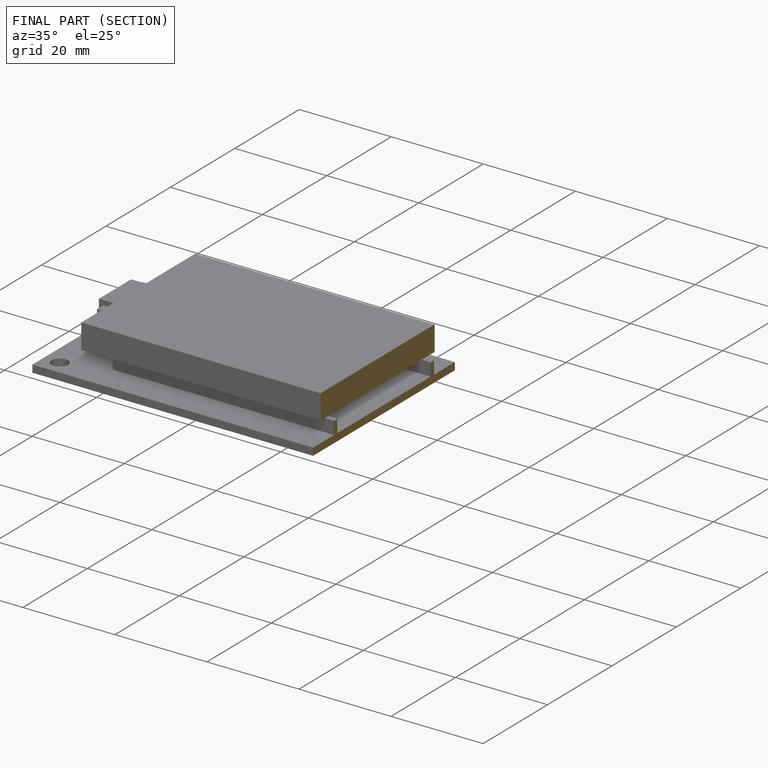
[diagram: finished part — half-section view (interior)]
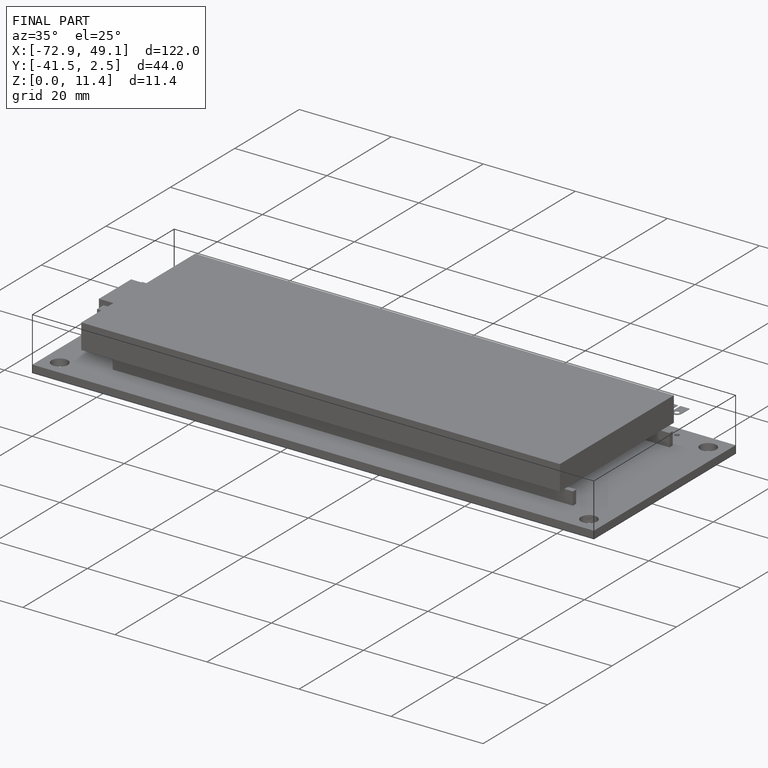
[diagram: finished part — iso view with bounding-box wireframe]
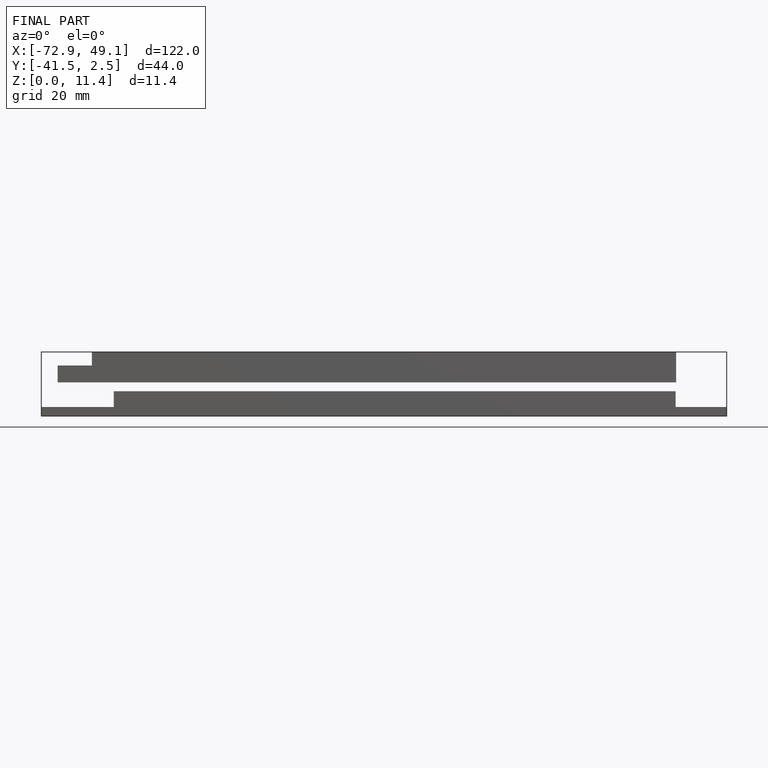
[diagram: finished part — front view with bounding-box wireframe]
